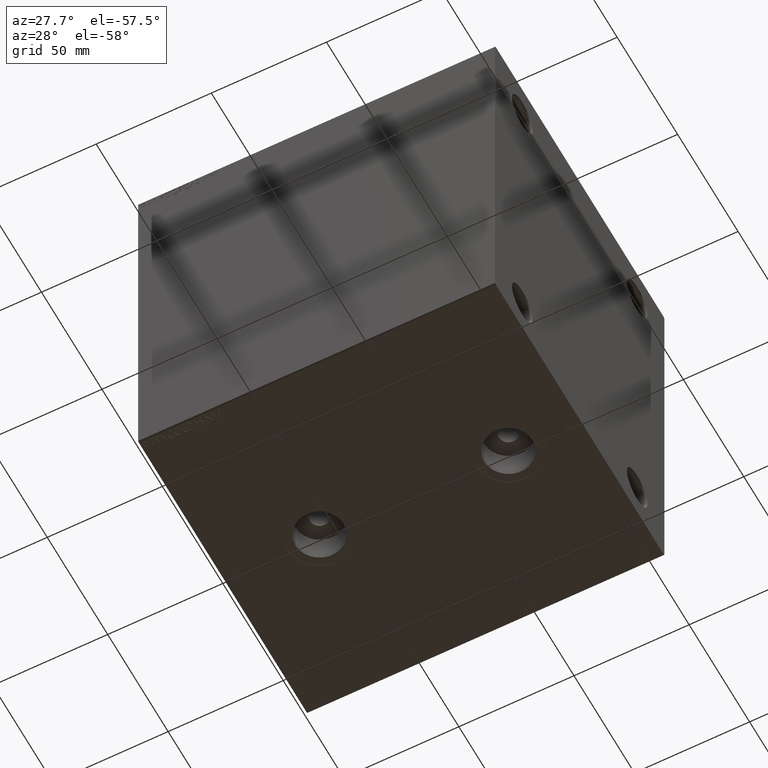
[diagram: clean part render]
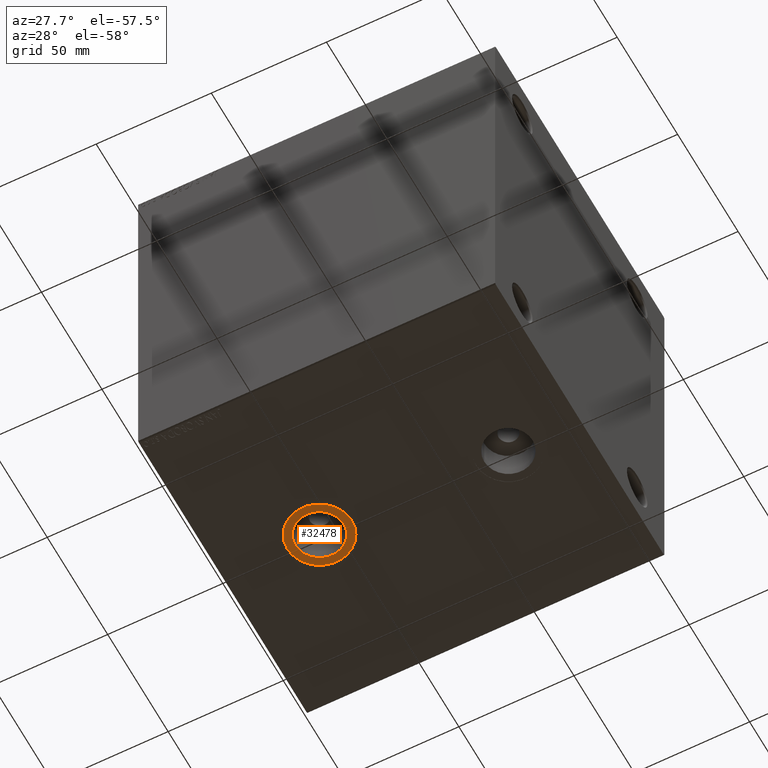
[diagram: same view with one face highlighted and labeled with its STEP entity id]
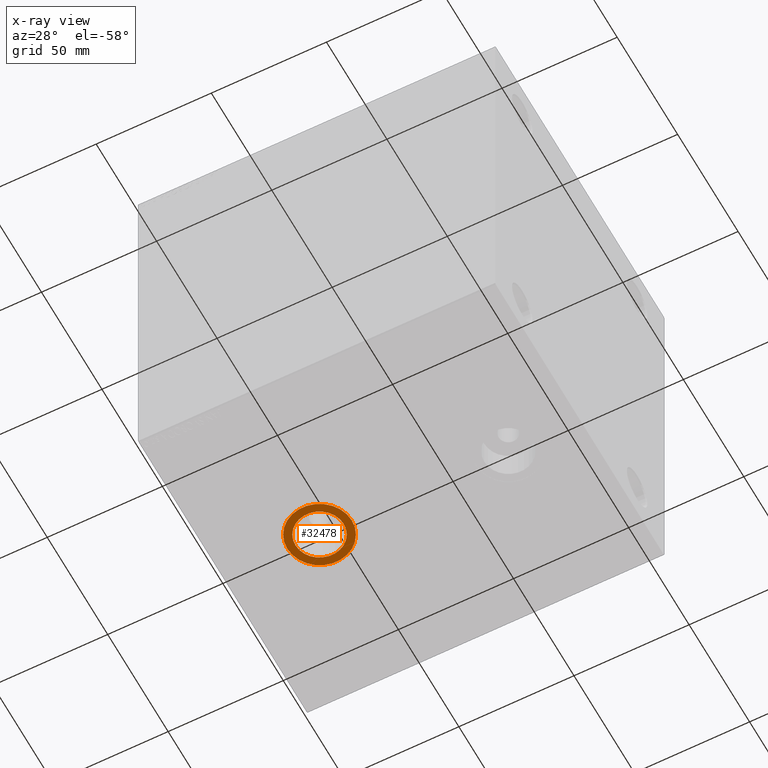
[diagram: x-ray of the same camera — body ghosted, the highlighted face saturated]
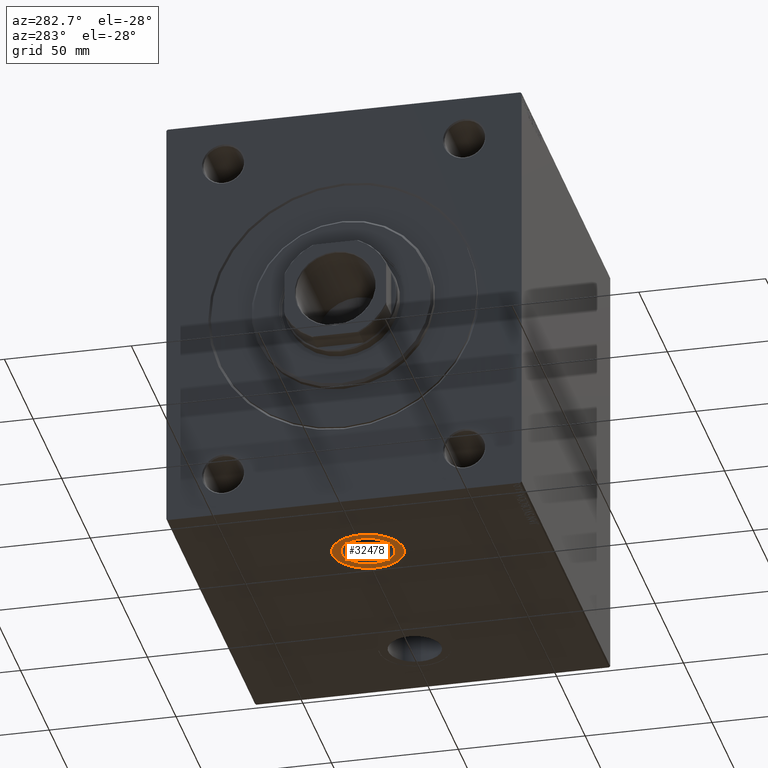
[diagram: same view with one face highlighted and labeled with its STEP entity id]
A machine part, auxiliary view. The second image highlights one B-rep face of the part: STEP entity #32478.
The next image is the same camera in x-ray: the body ghosted, the highlighted face saturated — about 0% of this face is hidden behind the body in this view.
A second angle (auxiliary view) of the same face is appended — the face is thin or edge-on in the first view.
In plain terms, the highlighted planar face has unit normal (0, 0, -1).
Its self-contained STEP definition (entity closure, byte-faithful):
#93 = CARTESIAN_POINT ( 'NONE',  ( 42.00000000000000000, -5.359976829575725911E-15, -84.90000000000000568 ) ) ;
#1832 = AXIS2_PLACEMENT_3D ( 'NONE', #21369, #17662, #35704 ) ;
#2091 = VERTEX_POINT ( 'NONE', #38558 ) ;
#2593 = CIRCLE ( 'NONE', #44658, 10.47999999999999687 ) ;
#3295 = CIRCLE ( 'NONE', #7691, 10.47999999999999687 ) ;
#3354 = VERTEX_POINT ( 'NONE', #29687 ) ;
#5499 = DIRECTION ( 'NONE',  ( 0.000000000000000000, 0.000000000000000000, -1.000000000000000000 ) ) ;
#7691 = AXIS2_PLACEMENT_3D ( 'NONE', #14569, #42761, #14353 ) ;
#8063 = CARTESIAN_POINT ( 'NONE',  ( 0.000000000000000000, 0.000000000000000000, -84.90000000000000568 ) ) ;
#9934 = CIRCLE ( 'NONE', #1832, 13.99999999999999822 ) ;
#11049 = ORIENTED_EDGE ( 'NONE', *, *, #26302, .T. ) ;
#11785 = AXIS2_PLACEMENT_3D ( 'NONE', #8063, #39285, #21717 ) ;
#14353 = DIRECTION ( 'NONE',  ( -1.000000000000000000, 0.000000000000000000, 0.000000000000000000 ) ) ;
#14569 = CARTESIAN_POINT ( 'NONE',  ( 42.00000000000000000, -5.359976829575725911E-15, -84.90000000000000568 ) ) ;
#17192 = EDGE_LOOP ( 'NONE', ( #24544, #37001 ) ) ;
#17662 = DIRECTION ( 'NONE',  ( 0.000000000000000000, 0.000000000000000000, -1.000000000000000000 ) ) ;
#18448 = EDGE_CURVE ( 'NONE', #25334, #3354, #31944, .T. ) ;
#18550 = VERTEX_POINT ( 'NONE', #36570 ) ;
#21369 = CARTESIAN_POINT ( 'NONE',  ( 42.00000000000000000, -5.359976829575725911E-15, -84.90000000000000568 ) ) ;
#21717 = DIRECTION ( 'NONE',  ( -1.000000000000000000, 0.000000000000000000, -0.000000000000000000 ) ) ;
#21823 = EDGE_CURVE ( 'NONE', #2091, #18550, #3295, .T. ) ;
#23155 = EDGE_CURVE ( 'NONE', #18550, #2091, #2593, .T. ) ;
#24544 = ORIENTED_EDGE ( 'NONE', *, *, #23155, .F. ) ;
#24582 = DIRECTION ( 'NONE',  ( -1.000000000000000000, 0.000000000000000000, 0.000000000000000000 ) ) ;
#25334 = VERTEX_POINT ( 'NONE', #36910 ) ;
#26302 = EDGE_CURVE ( 'NONE', #3354, #25334, #9934, .T. ) ;
#26979 = DIRECTION ( 'NONE',  ( -1.000000000000000000, 0.000000000000000000, 0.000000000000000000 ) ) ;
#28650 = FACE_BOUND ( 'NONE', #17192, .T. ) ;
#29687 = CARTESIAN_POINT ( 'NONE',  ( 28.00000000000000355, -5.359976829575725911E-15, -84.90000000000000568 ) ) ;
#31535 = EDGE_LOOP ( 'NONE', ( #11049, #44030 ) ) ;
#31944 = CIRCLE ( 'NONE', #37134, 13.99999999999999822 ) ;
#31966 = DIRECTION ( 'NONE',  ( 0.000000000000000000, 0.000000000000000000, -1.000000000000000000 ) ) ;
#32478 = ADVANCED_FACE ( 'NONE', ( #28650, #39731 ), #42743, .T. ) ;
#35704 = DIRECTION ( 'NONE',  ( -1.000000000000000000, 0.000000000000000000, 0.000000000000000000 ) ) ;
#36570 = CARTESIAN_POINT ( 'NONE',  ( 31.52000000000000668, -5.359976829575725911E-15, -84.90000000000000568 ) ) ;
#36910 = CARTESIAN_POINT ( 'NONE',  ( 56.00000000000000711, -3.645471310769431470E-15, -84.90000000000000568 ) ) ;
#37001 = ORIENTED_EDGE ( 'NONE', *, *, #21823, .F. ) ;
#37134 = AXIS2_PLACEMENT_3D ( 'NONE', #93, #31966, #24582 ) ;
#38558 = CARTESIAN_POINT ( 'NONE',  ( 52.47999999999999687, -4.076546984069300422E-15, -84.90000000000000568 ) ) ;
#39285 = DIRECTION ( 'NONE',  ( 0.000000000000000000, 0.000000000000000000, -1.000000000000000000 ) ) ;
#39731 = FACE_OUTER_BOUND ( 'NONE', #31535, .T. ) ;
#41527 = CARTESIAN_POINT ( 'NONE',  ( 42.00000000000000000, -5.359976829575725911E-15, -84.90000000000000568 ) ) ;
#42743 = PLANE ( 'NONE',  #11785 ) ;
#42761 = DIRECTION ( 'NONE',  ( 0.000000000000000000, 0.000000000000000000, -1.000000000000000000 ) ) ;
#44030 = ORIENTED_EDGE ( 'NONE', *, *, #18448, .T. ) ;
#44658 = AXIS2_PLACEMENT_3D ( 'NONE', #41527, #5499, #26979 ) ;